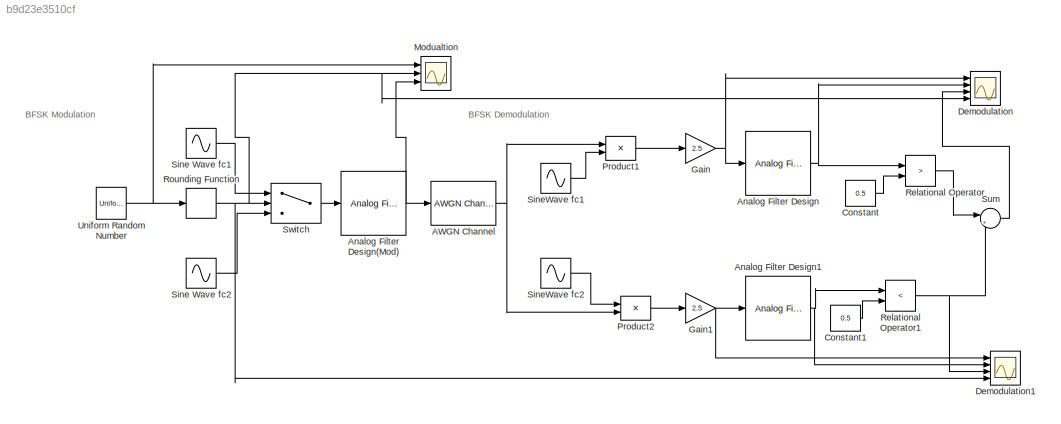
MODEL slx_b9d23e3510cf
KIND model
CONFIG AbsTol = auto
CONFIG EnableMultiTasking = off
CONFIG FixedStep = auto
CONFIG MaxStep = 0.01
CONFIG MinStep = 0.001
CONFIG RelTol = 1e-3
CONFIG SampleTimeConstraint = Unconstrained
CONFIG Solver = VariableStepAuto
CONFIG SolverName = VariableStepAuto
CONFIG StartTime = 0.0
CONFIG StopTime = 10.0
BLOCK [Reference] AWGN Channel  REF=commchan3/AWGN
Channel
  Ports = [1, 1]
  SourceBlock = commchan3/AWGN\nChannel
  SourceProductBaseCode = CM
  SourceProductName = Communications System Toolbox
  SourceType = AWGN Channel
  UserDataPersistent = on
BLOCK [Reference] Analog Filter Design  REF=dsparch4/Analog
Filter Design
  Ports = [1, 1]
  SourceBlock = dsparch4/Analog\nFilter Design
  SourceProductBaseCode = DS
  SourceProductName = DSP System Toolbox
  SourceType = Analog Filter Design
BLOCK [Reference] Analog Filter Design(Mod)  REF=dsparch4/Analog
Filter Design
  Ports = [1, 1]
  SourceBlock = dsparch4/Analog\nFilter Design
  SourceProductBaseCode = DS
  SourceProductName = DSP System Toolbox
  SourceType = Analog Filter Design
BLOCK [Reference] Analog Filter Design1  REF=dsparch4/Analog
Filter Design
  Ports = [1, 1]
  SourceBlock = dsparch4/Analog\nFilter Design
  SourceProductBaseCode = DS
  SourceProductName = DSP System Toolbox
  SourceType = Analog Filter Design
BLOCK [Constant] Constant
  Value = 0.5
BLOCK [Constant] Constant1
  Value = 0.5
BLOCK [Scope] Demodulation
  NumInputPorts = 4
  Ports = [4]
  ScopeSpecificationString = Simulink.scopes.TimeScopeBlockCfg('CurrentConfiguration', extmgr.ConfigurationSet(extmgr.Configuration('Core','General UI',true,'FigureColor',[0 0 0]),extmgr.Configuration('Core','Source UI',true),extmgr.Configuration('Sources','WiredSimulink',true),extmgr.Configuration('Visuals','Time Domain',true,'SerializedDisplays',{struct('MinYLimReal','-5.44652','MaxYLimReal','5.63375','YLabelReal','','MinYL...<+3632ch>
BLOCK [Scope] Demodulation1
  NumInputPorts = 4
  Ports = [4]
  ScopeSpecificationString = Simulink.scopes.TimeScopeBlockCfg('CurrentConfiguration', extmgr.ConfigurationSet(extmgr.Configuration('Core','General UI',true,'FigureColor',[0 0 0]),extmgr.Configuration('Core','Source UI',true),extmgr.Configuration('Sources','WiredSimulink',true,'DataLoggingVariableName','ScopeData1'),extmgr.Configuration('Visuals','Time Domain',true,'SerializedDisplays',{struct('MinYLimReal','-5.34805','MaxYLi...<+3691ch>
BLOCK [Gain] Gain
  Gain = 2.5
  OutDataTypeStr = Inherit: Inherit via internal rule
  ParamDataTypeStr = Inherit: Inherit via internal rule
  SaturateOnIntegerOverflow = off
BLOCK [Gain] Gain1
  Gain = 2.5
  OutDataTypeStr = Inherit: Inherit via internal rule
  ParamDataTypeStr = Inherit: Inherit via internal rule
  SaturateOnIntegerOverflow = off
BLOCK [Scope] Modualtion
  NumInputPorts = 3
  Ports = [3]
  ScopeSpecificationString = Simulink.scopes.TimeScopeBlockCfg('CurrentConfiguration', extmgr.ConfigurationSet(extmgr.Configuration('Core','General UI',true,'FigureColor',[0 0 0]),extmgr.Configuration('Core','Source UI',true),extmgr.Configuration('Sources','WiredSimulink',true,'DataLoggingVariableName','ScopeData1'),extmgr.Configuration('Visuals','Time Domain',true,'SerializedDisplays',{struct('MinYLimReal','-0.07794','MaxYLi...<+3070ch>
BLOCK [Product] Product1
  Ports = [2, 1]
  RndMeth = Floor
BLOCK [Product] Product2
  Ports = [2, 1]
  RndMeth = Floor
BLOCK [RelationalOperator] Relational Operator
  Operator = >
  Ports = [2, 1]
BLOCK [RelationalOperator] Relational Operator1
  Operator = <
  Ports = [2, 1]
BLOCK [Rounding] Rounding Function
  Operator = round
BLOCK [Sin] Sine Wave fc1
  Frequency = 15*2*pi
  Ports = [0, 1]
  SampleTime = 0
BLOCK [Sin] Sine Wave fc2
  Frequency = 5*2*pi
  Ports = [0, 1]
  SampleTime = 0
BLOCK [Sin] SineWave fc1
  Frequency = 15*2*pi
  Ports = [0, 1]
  SampleTime = 0
BLOCK [Sin] SineWave fc2
  Frequency = 5*2*pi
  Ports = [0, 1]
  SampleTime = 0
BLOCK [Sum] Sum
  IconShape = round
  InputSameDT = off
  Inputs = |++
  OutDataTypeStr = Inherit: Inherit via internal rule
  Ports = [2, 1]
  SaturateOnIntegerOverflow = off
BLOCK [Switch] Switch
  Criteria = u2 > Threshold
  InputSameDT = off
  SaturateOnIntegerOverflow = off
BLOCK [UniformRandomNumber] Uniform Random Number
  Minimum = 0
  SampleTime = 1
ANNOTATION (root): BFSK Demodulation
ANNOTATION (root): BFSK Modulation
NET AWGN Channel:1 -> Product1:1, Product2:2
NET Analog Filter Design(Mod):1 -> AWGN Channel:1, Modualtion:3
NET Analog Filter Design1:1 -> Demodulation1:2, Relational Operator1:1
NET Analog Filter Design:1 -> Demodulation:2, Relational Operator:1
LINE Constant1:1 -> Relational Operator1:2
LINE Constant:1 -> Relational Operator:2
NET Gain1:1 -> Analog Filter Design1:1, Demodulation1:1
NET Gain:1 -> Analog Filter Design:1, Demodulation:1
LINE Product1:1 -> Gain:1
LINE Product2:1 -> Gain1:1
NET Relational Operator1:1 -> Demodulation1:3, Sum:2
LINE Relational Operator:1 -> Sum:1
NET Rounding Function:1 -> Demodulation1:4, Demodulation:4, Modualtion:2, Switch:2
LINE Sine Wave fc1:1 -> Switch:1
LINE Sine Wave fc2:1 -> Switch:3
LINE SineWave fc1:1 -> Product1:2
LINE SineWave fc2:1 -> Product2:1
LINE Sum:1 -> Demodulation:3
LINE Switch:1 -> Analog Filter Design(Mod):1
NET Uniform Random Number:1 -> Modualtion:1, Rounding Function:1
note: NET lines group one-source signal fan-out (src -> all destinations, sorted); 1:1 wires keep LINE
